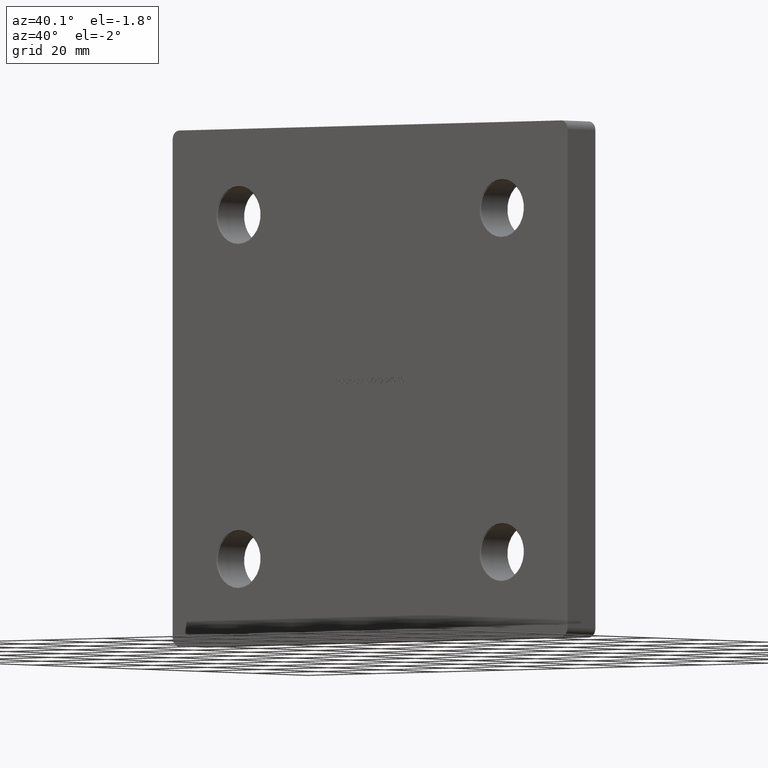
[diagram: clean part render]
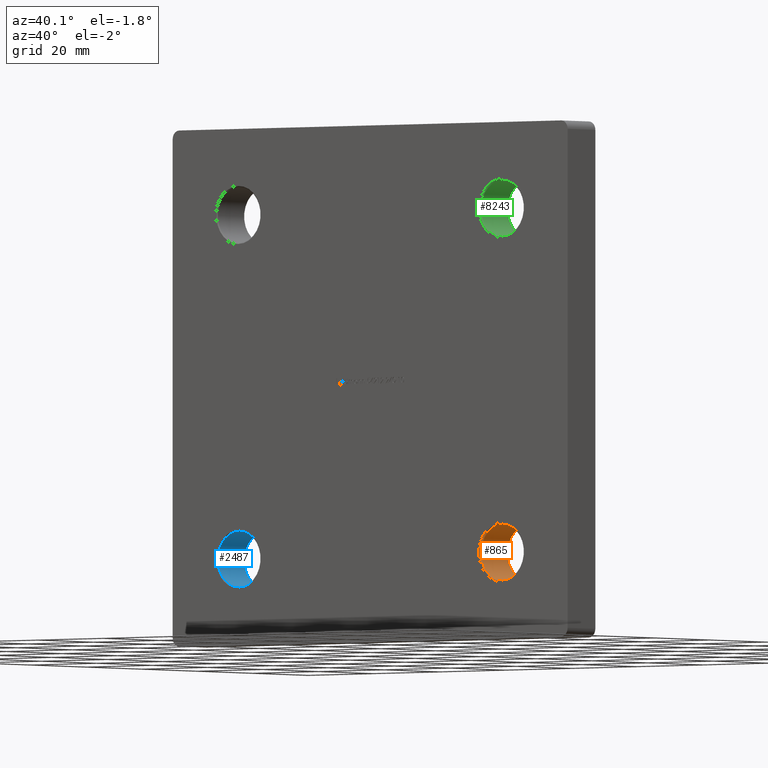
[diagram: same view with three faces highlighted in distinct colors, each labeled with its STEP entity id]
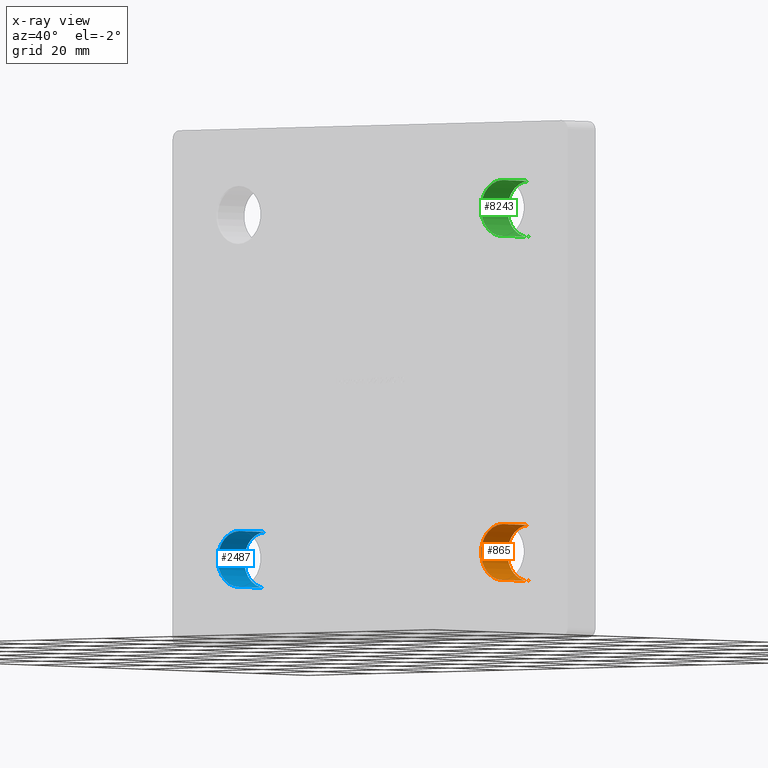
[diagram: x-ray of the same camera — body ghosted, the three highlighted faces saturated]
A machine part, auxiliary view with three faces highlighted in distinct colors.
The next image is the same camera in x-ray (body ghosted, the three faces saturated) — at least one of them is partly hidden behind the body in this view.
Their STEP definitions:

[orange] entity #865 — the highlighted cylindrical surface (edge-blend (fillet) strip) has radius 6.5 mm, axis along (-0, 1, -0).
#433 = DIRECTION ( 'NONE',  ( 0.000000000000000000, 0.000000000000000000, 1.000000000000000000 ) ) ;
#865 = ADVANCED_FACE ( 'NONE', ( #11424 ), #11759, .F. ) ;
#1201 = AXIS2_PLACEMENT_3D ( 'NONE', #6863, #6680, #433 ) ;
#1901 = CARTESIAN_POINT ( 'NONE',  ( 40.00000000000000000, 0.2499999999999854838, -33.50000000000000000 ) ) ;
#2059 = ORIENTED_EDGE ( 'NONE', *, *, #6436, .T. ) ;
#2110 = CARTESIAN_POINT ( 'NONE',  ( 40.00000000000000000, 9.749999999999996447, -40.00000000000000000 ) ) ;
#3608 = CARTESIAN_POINT ( 'NONE',  ( 40.00000000000000000, 0.2499999999999854838, -46.50000000000000000 ) ) ;
#3672 = CARTESIAN_POINT ( 'NONE',  ( 40.00000000000000000, 0.000000000000000000, -46.50000000000000000 ) ) ;
#4662 = DIRECTION ( 'NONE',  ( -0.000000000000000000, 1.000000000000000000, -0.000000000000000000 ) ) ;
#5245 = VERTEX_POINT ( 'NONE', #1901 ) ;
#5403 = DIRECTION ( 'NONE',  ( 0.000000000000000000, 1.000000000000000000, 0.000000000000000000 ) ) ;
#5415 = VECTOR ( 'NONE', #10966, 1000.000000000000000 ) ;
#6077 = ORIENTED_EDGE ( 'NONE', *, *, #12899, .T. ) ;
#6173 = DIRECTION ( 'NONE',  ( 0.000000000000000000, 0.000000000000000000, 1.000000000000000000 ) ) ;
#6436 = EDGE_CURVE ( 'NONE', #5245, #11196, #10144, .T. ) ;
#6680 = DIRECTION ( 'NONE',  ( -0.000000000000000000, -1.000000000000000000, -0.000000000000000000 ) ) ;
#6863 = CARTESIAN_POINT ( 'NONE',  ( 40.00000000000000000, 0.2499999999999854838, -40.00000000000000000 ) ) ;
#7202 = CIRCLE ( 'NONE', #13493, 6.499999999999999112 ) ;
#7269 = VERTEX_POINT ( 'NONE', #8917 ) ;
#7272 = EDGE_CURVE ( 'NONE', #5245, #10213, #10476, .T. ) ;
#8917 = CARTESIAN_POINT ( 'NONE',  ( 40.00000000000000000, 9.749999999999996447, -46.50000000000000000 ) ) ;
#9335 = CARTESIAN_POINT ( 'NONE',  ( 40.00000000000000000, 0.000000000000000000, -40.00000000000000000 ) ) ;
#9967 = VECTOR ( 'NONE', #4662, 1000.000000000000000 ) ;
#10144 = CIRCLE ( 'NONE', #1201, 6.499999999999999112 ) ;
#10213 = VERTEX_POINT ( 'NONE', #11624 ) ;
#10381 = EDGE_LOOP ( 'NONE', ( #2059, #6077, #13645, #11397 ) ) ;
#10476 = LINE ( 'NONE', #11071, #9967 ) ;
#10600 = AXIS2_PLACEMENT_3D ( 'NONE', #9335, #13615, #6173 ) ;
#10966 = DIRECTION ( 'NONE',  ( -0.000000000000000000, 1.000000000000000000, -0.000000000000000000 ) ) ;
#11071 = CARTESIAN_POINT ( 'NONE',  ( 40.00000000000000000, 0.000000000000000000, -33.50000000000000000 ) ) ;
#11092 = LINE ( 'NONE', #3672, #5415 ) ;
#11196 = VERTEX_POINT ( 'NONE', #3608 ) ;
#11397 = ORIENTED_EDGE ( 'NONE', *, *, #7272, .F. ) ;
#11424 = FACE_OUTER_BOUND ( 'NONE', #10381, .T. ) ;
#11624 = CARTESIAN_POINT ( 'NONE',  ( 40.00000000000000000, 9.749999999999996447, -33.50000000000000000 ) ) ;
#11663 = EDGE_CURVE ( 'NONE', #7269, #10213, #7202, .T. ) ;
#11759 = CYLINDRICAL_SURFACE ( 'NONE', #10600, 6.499999999999999112 ) ;
#12899 = EDGE_CURVE ( 'NONE', #11196, #7269, #11092, .T. ) ;
#12904 = DIRECTION ( 'NONE',  ( 0.000000000000000000, 0.000000000000000000, 1.000000000000000000 ) ) ;
#13493 = AXIS2_PLACEMENT_3D ( 'NONE', #2110, #5403, #12904 ) ;
#13615 = DIRECTION ( 'NONE',  ( -0.000000000000000000, 1.000000000000000000, -0.000000000000000000 ) ) ;
#13645 = ORIENTED_EDGE ( 'NONE', *, *, #11663, .T. ) ;

[blue] entity #2487 — the highlighted cylindrical surface (edge-blend (fillet) strip) has radius 6.5 mm, axis along (-0, 1, -0).
#288 = AXIS2_PLACEMENT_3D ( 'NONE', #5920, #9180, #2772 ) ;
#540 = EDGE_CURVE ( 'NONE', #5203, #868, #800, .T. ) ;
#800 = CIRCLE ( 'NONE', #288, 6.499999999999999112 ) ;
#868 = VERTEX_POINT ( 'NONE', #5139 ) ;
#1224 = CARTESIAN_POINT ( 'NONE',  ( -40.00000000000000000, 0.000000000000000000, -40.00000000000000000 ) ) ;
#1428 = ORIENTED_EDGE ( 'NONE', *, *, #540, .T. ) ;
#1586 = CARTESIAN_POINT ( 'NONE',  ( -40.00000000000000000, 0.2499999999999854838, -33.50000000000000000 ) ) ;
#1717 = EDGE_CURVE ( 'NONE', #10894, #868, #6913, .T. ) ;
#2487 = ADVANCED_FACE ( 'NONE', ( #7866 ), #11052, .F. ) ;
#2772 = DIRECTION ( 'NONE',  ( 0.000000000000000000, 0.000000000000000000, 1.000000000000000000 ) ) ;
#3137 = AXIS2_PLACEMENT_3D ( 'NONE', #7642, #8711, #11938 ) ;
#3535 = CARTESIAN_POINT ( 'NONE',  ( -40.00000000000000000, 0.000000000000000000, -33.50000000000000000 ) ) ;
#5139 = CARTESIAN_POINT ( 'NONE',  ( -40.00000000000000000, 9.749999999999996447, -33.50000000000000000 ) ) ;
#5203 = VERTEX_POINT ( 'NONE', #5849 ) ;
#5393 = EDGE_LOOP ( 'NONE', ( #12409, #10482, #1428, #7610 ) ) ;
#5849 = CARTESIAN_POINT ( 'NONE',  ( -40.00000000000000000, 9.749999999999996447, -46.50000000000000000 ) ) ;
#5920 = CARTESIAN_POINT ( 'NONE',  ( -40.00000000000000000, 9.749999999999996447, -40.00000000000000000 ) ) ;
#6410 = CIRCLE ( 'NONE', #3137, 6.499999999999999112 ) ;
#6627 = CARTESIAN_POINT ( 'NONE',  ( -40.00000000000000000, 0.000000000000000000, -46.50000000000000000 ) ) ;
#6913 = LINE ( 'NONE', #3535, #10230 ) ;
#7033 = CARTESIAN_POINT ( 'NONE',  ( -40.00000000000000000, 0.2499999999999854838, -46.50000000000000000 ) ) ;
#7262 = VECTOR ( 'NONE', #13046, 1000.000000000000000 ) ;
#7610 = ORIENTED_EDGE ( 'NONE', *, *, #1717, .F. ) ;
#7642 = CARTESIAN_POINT ( 'NONE',  ( -40.00000000000000000, 0.2499999999999854838, -40.00000000000000000 ) ) ;
#7751 = DIRECTION ( 'NONE',  ( -0.000000000000000000, 1.000000000000000000, -0.000000000000000000 ) ) ;
#7866 = FACE_OUTER_BOUND ( 'NONE', #5393, .T. ) ;
#8711 = DIRECTION ( 'NONE',  ( -0.000000000000000000, -1.000000000000000000, -0.000000000000000000 ) ) ;
#9180 = DIRECTION ( 'NONE',  ( 0.000000000000000000, 1.000000000000000000, 0.000000000000000000 ) ) ;
#9714 = DIRECTION ( 'NONE',  ( 0.000000000000000000, 0.000000000000000000, 1.000000000000000000 ) ) ;
#10230 = VECTOR ( 'NONE', #7751, 1000.000000000000000 ) ;
#10482 = ORIENTED_EDGE ( 'NONE', *, *, #10770, .T. ) ;
#10770 = EDGE_CURVE ( 'NONE', #11271, #5203, #12925, .T. ) ;
#10894 = VERTEX_POINT ( 'NONE', #1586 ) ;
#11052 = CYLINDRICAL_SURFACE ( 'NONE', #11951, 6.499999999999999112 ) ;
#11271 = VERTEX_POINT ( 'NONE', #7033 ) ;
#11938 = DIRECTION ( 'NONE',  ( 0.000000000000000000, 0.000000000000000000, 1.000000000000000000 ) ) ;
#11951 = AXIS2_PLACEMENT_3D ( 'NONE', #1224, #12970, #9714 ) ;
#12409 = ORIENTED_EDGE ( 'NONE', *, *, #13372, .T. ) ;
#12925 = LINE ( 'NONE', #6627, #7262 ) ;
#12970 = DIRECTION ( 'NONE',  ( -0.000000000000000000, 1.000000000000000000, -0.000000000000000000 ) ) ;
#13046 = DIRECTION ( 'NONE',  ( -0.000000000000000000, 1.000000000000000000, -0.000000000000000000 ) ) ;
#13372 = EDGE_CURVE ( 'NONE', #10894, #11271, #6410, .T. ) ;

[green] entity #8243 — the highlighted cylindrical surface (edge-blend (fillet) strip) has radius 6.5 mm, axis along (-0, 1, -0).
#93 = ORIENTED_EDGE ( 'NONE', *, *, #5432, .T. ) ;
#705 = ORIENTED_EDGE ( 'NONE', *, *, #5646, .F. ) ;
#921 = CYLINDRICAL_SURFACE ( 'NONE', #4989, 6.499999999999999112 ) ;
#974 = CARTESIAN_POINT ( 'NONE',  ( 40.00000000000000000, 0.2500000000000548450, 33.50000000000000000 ) ) ;
#1088 = DIRECTION ( 'NONE',  ( -0.000000000000000000, -1.000000000000000000, -0.000000000000000000 ) ) ;
#1268 = CARTESIAN_POINT ( 'NONE',  ( 40.00000000000000000, 0.2500000000000548450, 46.50000000000000000 ) ) ;
#1311 = CARTESIAN_POINT ( 'NONE',  ( 40.00000000000000000, 9.749999999999996447, 33.50000000000000000 ) ) ;
#1744 = DIRECTION ( 'NONE',  ( -0.000000000000000000, 1.000000000000000000, -0.000000000000000000 ) ) ;
#1995 = DIRECTION ( 'NONE',  ( 0.000000000000000000, 1.000000000000000000, 0.000000000000000000 ) ) ;
#2039 = DIRECTION ( 'NONE',  ( 0.000000000000000000, 0.000000000000000000, 1.000000000000000000 ) ) ;
#2129 = LINE ( 'NONE', #6090, #10505 ) ;
#2473 = CIRCLE ( 'NONE', #5685, 6.499999999999999112 ) ;
#2928 = CARTESIAN_POINT ( 'NONE',  ( 40.00000000000000000, 0.000000000000000000, 40.00000000000000000 ) ) ;
#3370 = ORIENTED_EDGE ( 'NONE', *, *, #4006, .T. ) ;
#3710 = CARTESIAN_POINT ( 'NONE',  ( 40.00000000000000000, 9.749999999999996447, 46.50000000000000000 ) ) ;
#4006 = EDGE_CURVE ( 'NONE', #4180, #6057, #10188, .T. ) ;
#4180 = VERTEX_POINT ( 'NONE', #974 ) ;
#4989 = AXIS2_PLACEMENT_3D ( 'NONE', #2928, #1744, #9284 ) ;
#5432 = EDGE_CURVE ( 'NONE', #6057, #11829, #2473, .T. ) ;
#5579 = DIRECTION ( 'NONE',  ( -0.000000000000000000, 1.000000000000000000, -0.000000000000000000 ) ) ;
#5646 = EDGE_CURVE ( 'NONE', #9855, #11829, #2129, .T. ) ;
#5685 = AXIS2_PLACEMENT_3D ( 'NONE', #7389, #1995, #2039 ) ;
#6057 = VERTEX_POINT ( 'NONE', #1311 ) ;
#6090 = CARTESIAN_POINT ( 'NONE',  ( 40.00000000000000000, 0.000000000000000000, 46.50000000000000000 ) ) ;
#7089 = EDGE_LOOP ( 'NONE', ( #10428, #3370, #93, #705 ) ) ;
#7389 = CARTESIAN_POINT ( 'NONE',  ( 40.00000000000000000, 9.749999999999996447, 40.00000000000000000 ) ) ;
#7474 = DIRECTION ( 'NONE',  ( 0.000000000000000000, 0.000000000000000000, 1.000000000000000000 ) ) ;
#7518 = CARTESIAN_POINT ( 'NONE',  ( 40.00000000000000000, 0.2500000000000548450, 40.00000000000000000 ) ) ;
#7848 = AXIS2_PLACEMENT_3D ( 'NONE', #7518, #1088, #7474 ) ;
#8243 = ADVANCED_FACE ( 'NONE', ( #9124 ), #921, .F. ) ;
#8875 = EDGE_CURVE ( 'NONE', #9855, #4180, #9470, .T. ) ;
#9124 = FACE_OUTER_BOUND ( 'NONE', #7089, .T. ) ;
#9284 = DIRECTION ( 'NONE',  ( 0.000000000000000000, 0.000000000000000000, 1.000000000000000000 ) ) ;
#9470 = CIRCLE ( 'NONE', #7848, 6.499999999999999112 ) ;
#9855 = VERTEX_POINT ( 'NONE', #1268 ) ;
#9948 = CARTESIAN_POINT ( 'NONE',  ( 40.00000000000000000, 0.000000000000000000, 33.50000000000000000 ) ) ;
#10188 = LINE ( 'NONE', #9948, #11700 ) ;
#10428 = ORIENTED_EDGE ( 'NONE', *, *, #8875, .T. ) ;
#10505 = VECTOR ( 'NONE', #11406, 1000.000000000000000 ) ;
#11406 = DIRECTION ( 'NONE',  ( -0.000000000000000000, 1.000000000000000000, -0.000000000000000000 ) ) ;
#11700 = VECTOR ( 'NONE', #5579, 1000.000000000000000 ) ;
#11829 = VERTEX_POINT ( 'NONE', #3710 ) ;